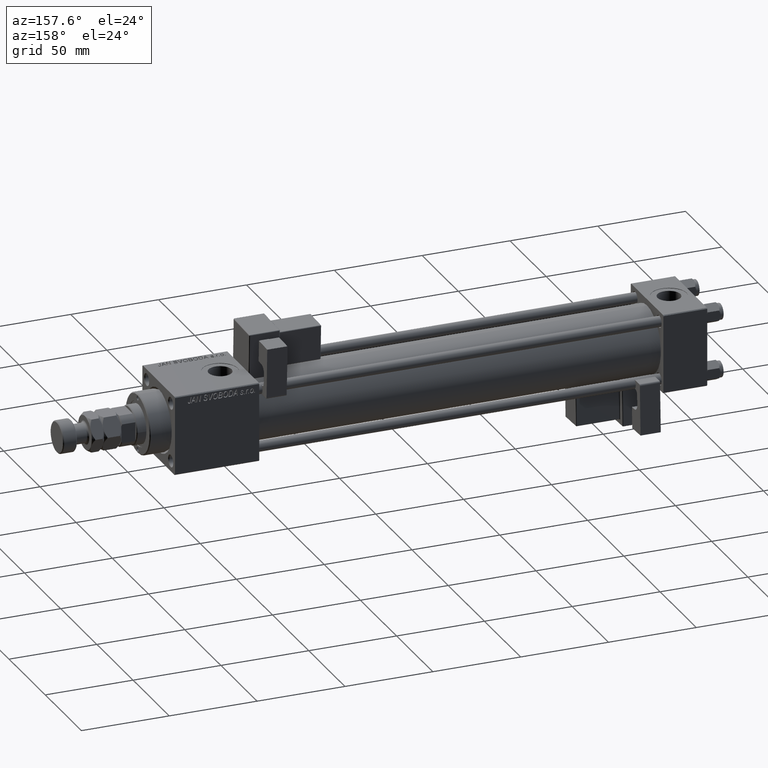
[diagram: clean part render]
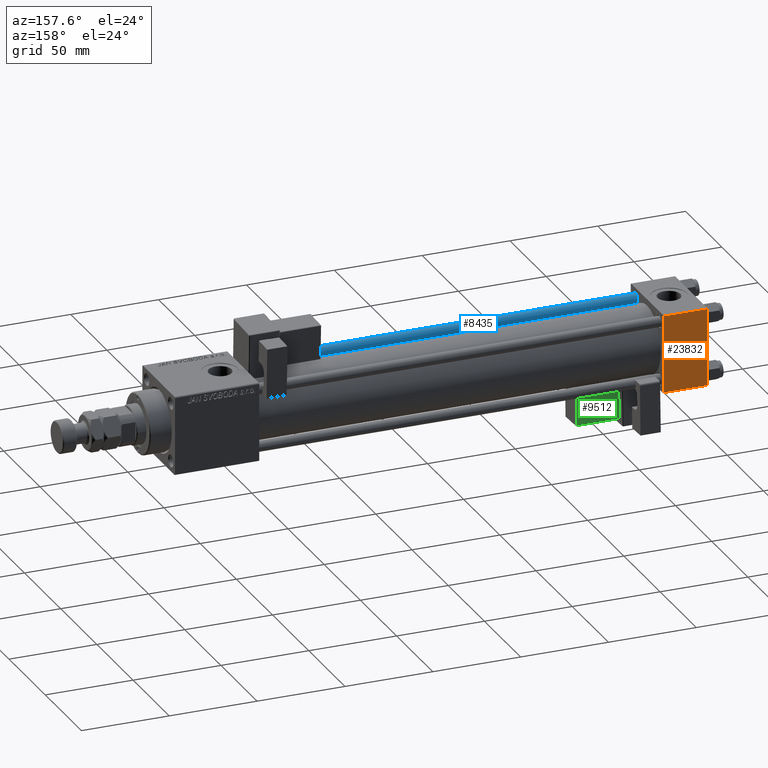
[diagram: same view with three faces highlighted in distinct colors, each labeled with its STEP entity id]
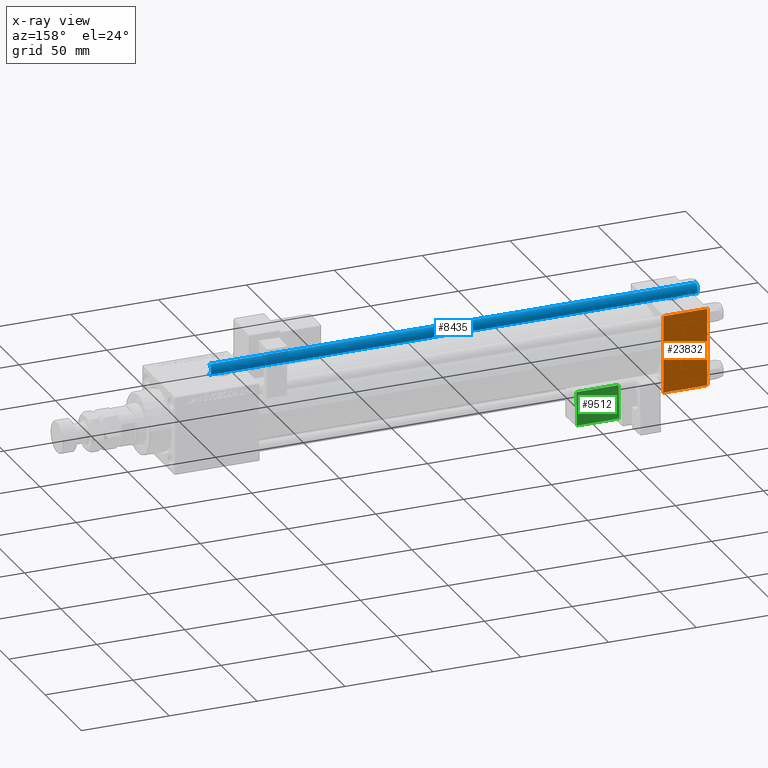
[diagram: x-ray of the same camera — body ghosted, the three highlighted faces saturated]
A machine part, auxiliary view with three faces highlighted in distinct colors.
The next image is the same camera in x-ray (body ghosted, the three faces saturated) — at least one of them is partly hidden behind the body in this view.
Their STEP definitions:

[orange] entity #23832 — the highlighted planar face has unit normal (0, 1, 0).
#1188 = EDGE_CURVE ( 'NONE', #42061, #9319, #40725, .T. ) ;
#3193 = CARTESIAN_POINT ( 'NONE',  ( 25.00000000000000000, 22.50000000000000000, 21.99999999999999645 ) ) ;
#4592 = CARTESIAN_POINT ( 'NONE',  ( 25.00000000000000000, 22.50000000000000000, 22.50000000000000355 ) ) ;
#4752 = AXIS2_PLACEMENT_3D ( 'NONE', #4592, #25968, #43301 ) ;
#5153 = PLANE ( 'NONE',  #4752 ) ;
#8097 = VECTOR ( 'NONE', #35179, 1000.000000000000000 ) ;
#8719 = CARTESIAN_POINT ( 'NONE',  ( 25.00000000000000000, 22.50000000000000000, 22.50000000000000355 ) ) ;
#9319 = VERTEX_POINT ( 'NONE', #47268 ) ;
#10848 = CARTESIAN_POINT ( 'NONE',  ( 25.00000000000000000, 22.50000000000000000, -21.99999999999996803 ) ) ;
#13647 = VECTOR ( 'NONE', #20227, 1000.000000000000000 ) ;
#13796 = EDGE_CURVE ( 'NONE', #37790, #33327, #43427, .T. ) ;
#14640 = VECTOR ( 'NONE', #20596, 1000.000000000000000 ) ;
#15120 = CARTESIAN_POINT ( 'NONE',  ( 0.000000000000000000, 22.50000000000000000, 22.50000000000000355 ) ) ;
#17731 = FACE_OUTER_BOUND ( 'NONE', #52642, .T. ) ;
#20227 = DIRECTION ( 'NONE',  ( -1.000000000000000000, 0.000000000000000000, 0.000000000000000000 ) ) ;
#20596 = DIRECTION ( 'NONE',  ( 1.000000000000000000, 0.000000000000000000, 0.000000000000000000 ) ) ;
#21298 = EDGE_CURVE ( 'NONE', #42061, #37790, #50735, .T. ) ;
#23832 = ADVANCED_FACE ( 'NONE', ( #17731 ), #5153, .T. ) ;
#25968 = DIRECTION ( 'NONE',  ( -0.000000000000000000, 1.000000000000000000, 0.000000000000000000 ) ) ;
#28175 = CARTESIAN_POINT ( 'NONE',  ( 25.00000000000000000, 22.50000000000000000, -21.99999999999998224 ) ) ;
#29330 = ORIENTED_EDGE ( 'NONE', *, *, #35277, .T. ) ;
#32428 = LINE ( 'NONE', #28175, #13647 ) ;
#32545 = CARTESIAN_POINT ( 'NONE',  ( 25.00000000000000000, 22.50000000000000000, 21.99999999999999645 ) ) ;
#33327 = VERTEX_POINT ( 'NONE', #10848 ) ;
#35179 = DIRECTION ( 'NONE',  ( 0.000000000000000000, 0.000000000000000000, -1.000000000000000000 ) ) ;
#35277 = EDGE_CURVE ( 'NONE', #33327, #9319, #32428, .T. ) ;
#37025 = VECTOR ( 'NONE', #49822, 1000.000000000000000 ) ;
#37790 = VERTEX_POINT ( 'NONE', #32545 ) ;
#40725 = LINE ( 'NONE', #15120, #37025 ) ;
#42061 = VERTEX_POINT ( 'NONE', #50127 ) ;
#43301 = DIRECTION ( 'NONE',  ( 0.000000000000000000, -0.000000000000000000, 1.000000000000000000 ) ) ;
#43427 = LINE ( 'NONE', #8719, #8097 ) ;
#47268 = CARTESIAN_POINT ( 'NONE',  ( 0.000000000000000000, 22.50000000000000000, -21.99999999999996803 ) ) ;
#48445 = ORIENTED_EDGE ( 'NONE', *, *, #13796, .T. ) ;
#49822 = DIRECTION ( 'NONE',  ( 0.000000000000000000, 0.000000000000000000, -1.000000000000000000 ) ) ;
#50127 = CARTESIAN_POINT ( 'NONE',  ( 0.000000000000000000, 22.50000000000000000, 21.99999999999999645 ) ) ;
#50735 = LINE ( 'NONE', #3193, #14640 ) ;
#52178 = ORIENTED_EDGE ( 'NONE', *, *, #1188, .F. ) ;
#52569 = ORIENTED_EDGE ( 'NONE', *, *, #21298, .T. ) ;
#52642 = EDGE_LOOP ( 'NONE', ( #48445, #29330, #52178, #52569 ) ) ;

[blue] entity #8435 — the highlighted cylindrical surface (edge-blend (fillet) strip) has radius 3 mm, axis along (1, 0, -0).
#2779 = CARTESIAN_POINT ( 'NONE',  ( 3.000000000000000444, 3.673940397442060361E-16, 278.0000000000000000 ) ) ;
#3094 = CIRCLE ( 'NONE', #36754, 3.000000000000000444 ) ;
#4512 = VERTEX_POINT ( 'NONE', #25430 ) ;
#5837 = ORIENTED_EDGE ( 'NONE', *, *, #48631, .T. ) ;
#6487 = DIRECTION ( 'NONE',  ( -0.000000000000000000, -0.000000000000000000, -1.000000000000000000 ) ) ;
#8188 = AXIS2_PLACEMENT_3D ( 'NONE', #20537, #38710, #47526 ) ;
#8236 = CIRCLE ( 'NONE', #8188, 3.000000000000000444 ) ;
#8435 = ADVANCED_FACE ( 'NONE', ( #34668 ), #9337, .T. ) ;
#9337 = CYLINDRICAL_SURFACE ( 'NONE', #22459, 3.000000000000000444 ) ;
#10171 = ORIENTED_EDGE ( 'NONE', *, *, #31366, .T. ) ;
#11652 = CARTESIAN_POINT ( 'NONE',  ( -3.000000000000000444, 0.000000000000000000, 277.5000000000000568 ) ) ;
#12324 = ORIENTED_EDGE ( 'NONE', *, *, #36817, .T. ) ;
#14152 = CARTESIAN_POINT ( 'NONE',  ( 0.000000000000000000, 0.000000000000000000, 278.0000000000000000 ) ) ;
#16067 = CARTESIAN_POINT ( 'NONE',  ( -3.000000000000000444, 0.000000000000000000, 278.0000000000000000 ) ) ;
#16203 = DIRECTION ( 'NONE',  ( 1.000000000000000000, 0.000000000000000000, 0.000000000000000000 ) ) ;
#20537 = CARTESIAN_POINT ( 'NONE',  ( 0.000000000000000000, 0.000000000000000000, 0.5000000000000559552 ) ) ;
#22291 = VERTEX_POINT ( 'NONE', #44543 ) ;
#22459 = AXIS2_PLACEMENT_3D ( 'NONE', #14152, #35788, #26701 ) ;
#25023 = CARTESIAN_POINT ( 'NONE',  ( -3.000000000000000444, 0.000000000000000000, 0.5000000000000559552 ) ) ;
#25430 = CARTESIAN_POINT ( 'NONE',  ( 3.000000000000000444, 3.673940397442060361E-16, 277.5000000000000568 ) ) ;
#26701 = DIRECTION ( 'NONE',  ( -1.000000000000000000, 0.000000000000000000, 0.000000000000000000 ) ) ;
#31366 = EDGE_CURVE ( 'NONE', #43539, #48638, #37695, .T. ) ;
#32701 = DIRECTION ( 'NONE',  ( 0.000000000000000000, 0.000000000000000000, -1.000000000000000000 ) ) ;
#34668 = FACE_OUTER_BOUND ( 'NONE', #47649, .T. ) ;
#35788 = DIRECTION ( 'NONE',  ( -0.000000000000000000, -0.000000000000000000, -1.000000000000000000 ) ) ;
#36754 = AXIS2_PLACEMENT_3D ( 'NONE', #54316, #32701, #16203 ) ;
#36817 = EDGE_CURVE ( 'NONE', #48638, #22291, #8236, .T. ) ;
#37695 = LINE ( 'NONE', #16067, #56278 ) ;
#38710 = DIRECTION ( 'NONE',  ( -0.000000000000000000, -0.000000000000000000, 1.000000000000000000 ) ) ;
#43539 = VERTEX_POINT ( 'NONE', #11652 ) ;
#44543 = CARTESIAN_POINT ( 'NONE',  ( 3.000000000000000444, 3.673940397442060361E-16, 0.5000000000000559552 ) ) ;
#46608 = LINE ( 'NONE', #2779, #49014 ) ;
#47526 = DIRECTION ( 'NONE',  ( 1.000000000000000000, 0.000000000000000000, 0.000000000000000000 ) ) ;
#47649 = EDGE_LOOP ( 'NONE', ( #55887, #5837, #10171, #12324 ) ) ;
#48631 = EDGE_CURVE ( 'NONE', #4512, #43539, #3094, .T. ) ;
#48638 = VERTEX_POINT ( 'NONE', #25023 ) ;
#49014 = VECTOR ( 'NONE', #6487, 1000.000000000000000 ) ;
#54316 = CARTESIAN_POINT ( 'NONE',  ( 0.000000000000000000, 0.000000000000000000, 277.5000000000000568 ) ) ;
#55027 = DIRECTION ( 'NONE',  ( -0.000000000000000000, -0.000000000000000000, -1.000000000000000000 ) ) ;
#55122 = EDGE_CURVE ( 'NONE', #4512, #22291, #46608, .T. ) ;
#55887 = ORIENTED_EDGE ( 'NONE', *, *, #55122, .F. ) ;
#56278 = VECTOR ( 'NONE', #55027, 1000.000000000000000 ) ;

[green] entity #9512 — the highlighted planar face has unit normal (0, -0.9994, -0.0353).
#571 = DIRECTION ( 'NONE',  ( 0.000000000000000000, -1.000000000000000000, 0.000000000000000000 ) ) ;
#674 = CARTESIAN_POINT ( 'NONE',  ( 9.250000000000001776, -15.25000000000000000, 22.00000000000000355 ) ) ;
#2637 = DIRECTION ( 'NONE',  ( 1.000000000000000000, -0.000000000000000000, 1.334402673828313339E-16 ) ) ;
#4411 = CARTESIAN_POINT ( 'NONE',  ( 9.250000000000003553, -15.25000000000000000, 2.500000000000005773 ) ) ;
#4476 = EDGE_CURVE ( 'NONE', #8826, #44522, #47330, .T. ) ;
#8826 = VERTEX_POINT ( 'NONE', #26637 ) ;
#9512 = ADVANCED_FACE ( 'NONE', ( #22786 ), #35865, .F. ) ;
#10904 = LINE ( 'NONE', #24860, #13047 ) ;
#12163 = VECTOR ( 'NONE', #31987, 1000.000000000000000 ) ;
#13047 = VECTOR ( 'NONE', #2637, 1000.000000000000000 ) ;
#13386 = AXIS2_PLACEMENT_3D ( 'NONE', #52655, #571, #53209 ) ;
#13456 = DIRECTION ( 'NONE',  ( 1.734723475976807341E-16, -0.000000000000000000, -1.000000000000000000 ) ) ;
#15137 = VECTOR ( 'NONE', #13456, 1000.000000000000000 ) ;
#16052 = VERTEX_POINT ( 'NONE', #34461 ) ;
#16151 = CARTESIAN_POINT ( 'NONE',  ( 33.75000000000000000, -15.25000000000000000, 2.500000000000009326 ) ) ;
#16659 = EDGE_CURVE ( 'NONE', #44522, #49039, #33489, .T. ) ;
#17268 = ORIENTED_EDGE ( 'NONE', *, *, #4476, .T. ) ;
#17759 = CARTESIAN_POINT ( 'NONE',  ( 33.25000000000000000, -15.25000000000000000, 2.000000000000008438 ) ) ;
#22786 = FACE_OUTER_BOUND ( 'NONE', #31140, .T. ) ;
#23523 = ORIENTED_EDGE ( 'NONE', *, *, #25977, .T. ) ;
#24860 = CARTESIAN_POINT ( 'NONE',  ( 33.75000000000000000, -15.25000000000000000, 21.50000000000000355 ) ) ;
#25977 = EDGE_CURVE ( 'NONE', #49039, #16052, #45061, .T. ) ;
#26059 = EDGE_CURVE ( 'NONE', #16052, #8826, #10904, .T. ) ;
#26637 = CARTESIAN_POINT ( 'NONE',  ( 33.25000000000000000, -15.25000000000000000, 21.50000000000000355 ) ) ;
#31140 = EDGE_LOOP ( 'NONE', ( #48406, #23523, #33997, #17268 ) ) ;
#31987 = DIRECTION ( 'NONE',  ( -1.334402673828313339E-16, 0.000000000000000000, 1.000000000000000000 ) ) ;
#33211 = DIRECTION ( 'NONE',  ( -1.000000000000000000, 0.000000000000000000, -1.334402673828313339E-16 ) ) ;
#33489 = LINE ( 'NONE', #16151, #40954 ) ;
#33997 = ORIENTED_EDGE ( 'NONE', *, *, #26059, .T. ) ;
#34461 = CARTESIAN_POINT ( 'NONE',  ( 9.250000000000001776, -15.25000000000000000, 21.50000000000000000 ) ) ;
#34758 = CARTESIAN_POINT ( 'NONE',  ( 33.25000000000000000, -15.25000000000000000, 2.500000000000009326 ) ) ;
#35865 = PLANE ( 'NONE',  #13386 ) ;
#40954 = VECTOR ( 'NONE', #33211, 1000.000000000000000 ) ;
#44522 = VERTEX_POINT ( 'NONE', #34758 ) ;
#45061 = LINE ( 'NONE', #674, #12163 ) ;
#47330 = LINE ( 'NONE', #17759, #15137 ) ;
#48406 = ORIENTED_EDGE ( 'NONE', *, *, #16659, .T. ) ;
#49039 = VERTEX_POINT ( 'NONE', #4411 ) ;
#52655 = CARTESIAN_POINT ( 'NONE',  ( 33.75000000000000000, -15.25000000000000000, 22.00000000000000711 ) ) ;
#53209 = DIRECTION ( 'NONE',  ( 0.000000000000000000, -0.000000000000000000, -1.000000000000000000 ) ) ;